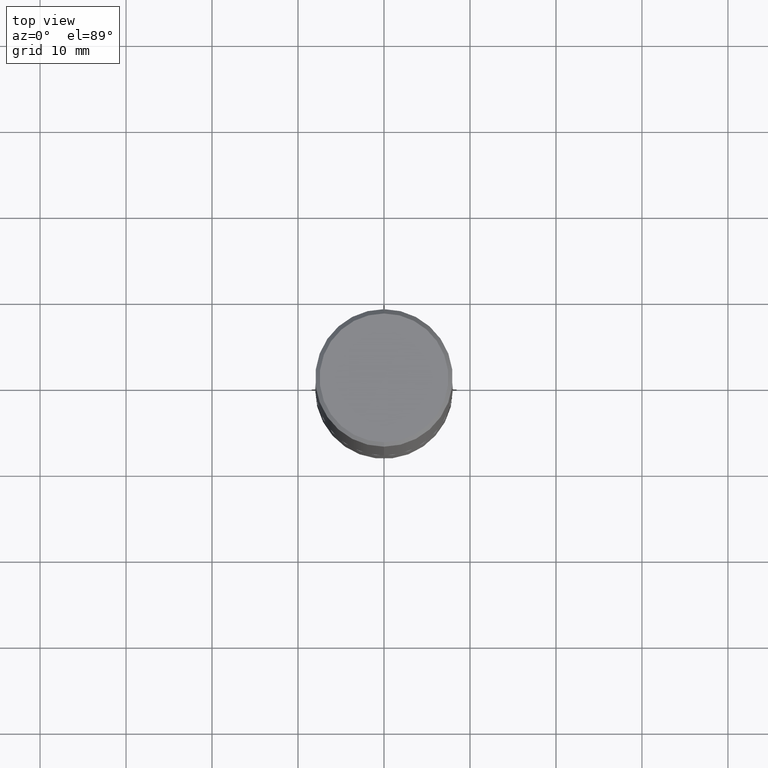
[diagram: clean part render]
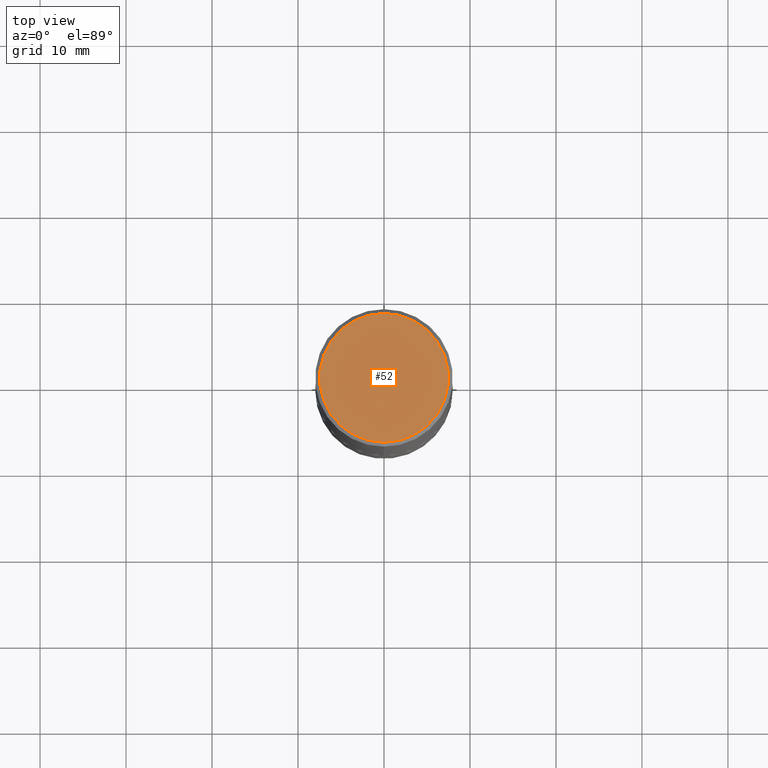
[diagram: same view with one face highlighted and labeled with its STEP entity id]
A machine part, top view. The second image highlights one B-rep face of the part: STEP entity #52.
In plain terms, the highlighted planar face has unit normal (0, -0, -1).
Its self-contained STEP definition (entity closure, byte-faithful):
#4 = AXIS2_PLACEMENT_3D ( 'NONE', #77, #413, #89 ) ;
#20 = CARTESIAN_POINT ( 'NONE',  ( -3.972202148034154247E-45, 5.674223411957656832E-31, 1.624735999550272104E-16 ) ) ;
#40 = ORIENTED_EDGE ( 'NONE', *, *, #363, .T. ) ;
#51 = CIRCLE ( 'NONE', #383, 0.2949499999999998789 ) ;
#52 = ADVANCED_FACE ( 'NONE', ( #202 ), #174, .F. ) ;
#64 = DIRECTION ( 'NONE',  ( -6.982962677686265922E-15, -1.000000000000000000, 3.492397173158152793E-15 ) ) ;
#74 = AXIS2_PLACEMENT_3D ( 'NONE', #342, #354, #64 ) ;
#77 = CARTESIAN_POINT ( 'NONE',  ( 2.059624841783563274E-15, 0.2949499999999998789, -9.488457462454831822E-16 ) ) ;
#89 = DIRECTION ( 'NONE',  ( 6.982962677686265922E-15, 1.000000000000000000, -3.492397173158153582E-15 ) ) ;
#104 = CARTESIAN_POINT ( 'NONE',  ( 2.129454468560426967E-15, 0.2949499999999998789, -8.676089462679696633E-16 ) ) ;
#111 = EDGE_CURVE ( 'NONE', #166, #312, #139, .T. ) ;
#119 = DIRECTION ( 'NONE',  ( -2.444829282501072008E-29, 3.492397173158153582E-15, 1.000000000000000000 ) ) ;
#139 = CIRCLE ( 'NONE', #74, 0.2949499999999998789 ) ;
#166 = VERTEX_POINT ( 'NONE', #214 ) ;
#174 = PLANE ( 'NONE',  #4 ) ;
#202 = FACE_OUTER_BOUND ( 'NONE', #255, .T. ) ;
#214 = CARTESIAN_POINT ( 'NONE',  ( -2.092108864420428031E-15, -0.2949499999999998789, 1.192556146178024035E-15 ) ) ;
#255 = EDGE_LOOP ( 'NONE', ( #40, #384 ) ) ;
#278 = DIRECTION ( 'NONE',  ( -6.982962677686265922E-15, -1.000000000000000000, 3.492397173158152793E-15 ) ) ;
#312 = VERTEX_POINT ( 'NONE', #104 ) ;
#342 = CARTESIAN_POINT ( 'NONE',  ( -3.972202148034154247E-45, 5.674223411957656832E-31, 1.624735999550272104E-16 ) ) ;
#354 = DIRECTION ( 'NONE',  ( -2.444829282501072008E-29, 3.492397173158153582E-15, 1.000000000000000000 ) ) ;
#363 = EDGE_CURVE ( 'NONE', #312, #166, #51, .T. ) ;
#383 = AXIS2_PLACEMENT_3D ( 'NONE', #20, #119, #278 ) ;
#384 = ORIENTED_EDGE ( 'NONE', *, *, #111, .T. ) ;
#413 = DIRECTION ( 'NONE',  ( 2.444829282501071727E-29, -3.492397173158153582E-15, -1.000000000000000000 ) ) ;